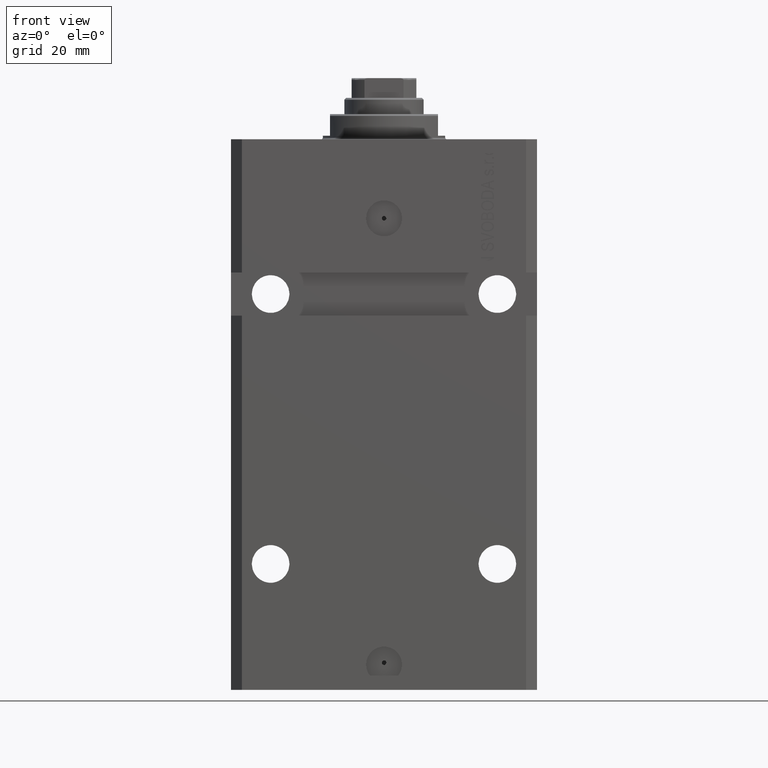
[diagram: clean part render]
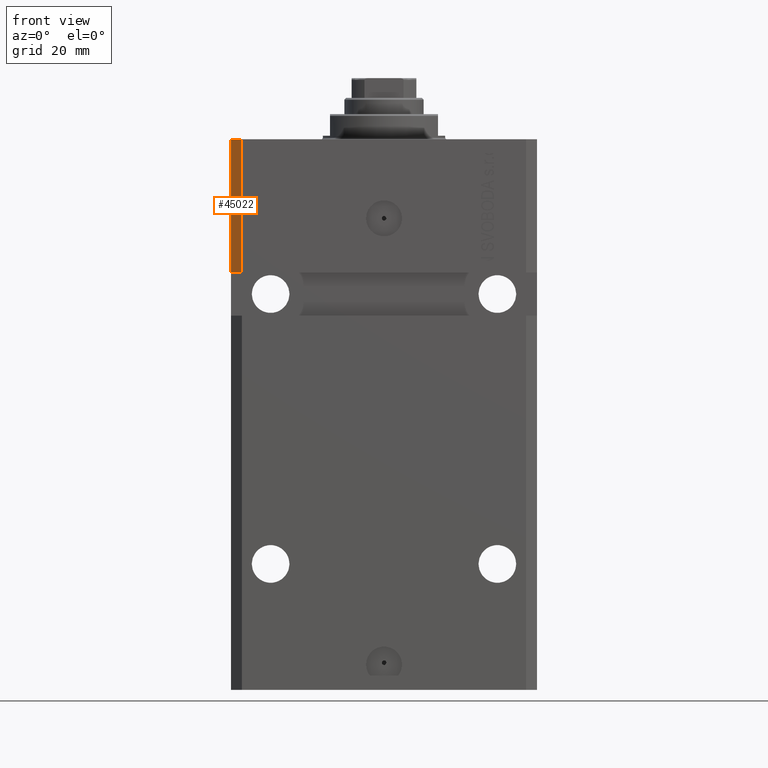
[diagram: same view with one face highlighted and labeled with its STEP entity id]
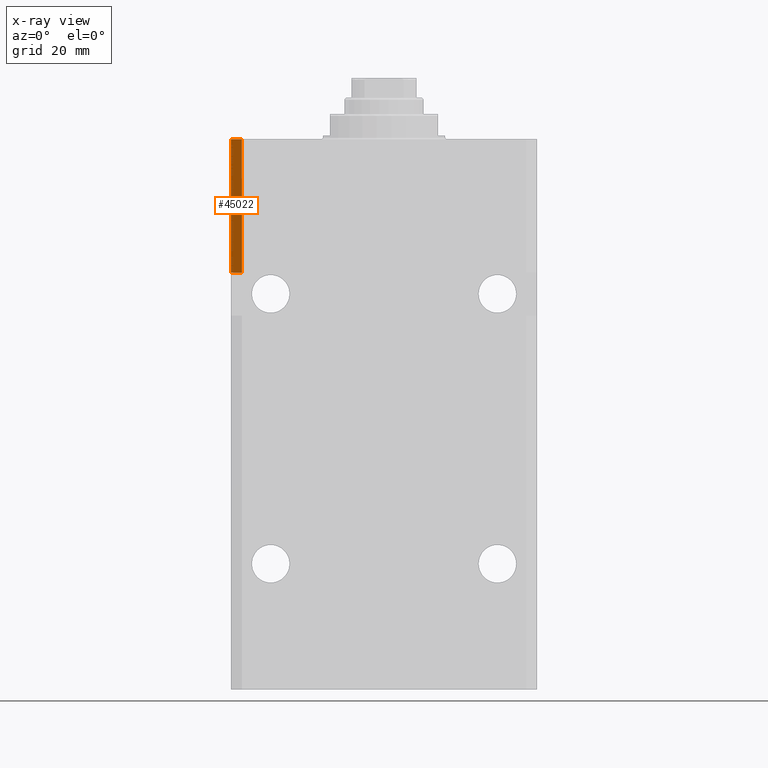
[diagram: x-ray of the same camera — body ghosted, the highlighted face saturated]
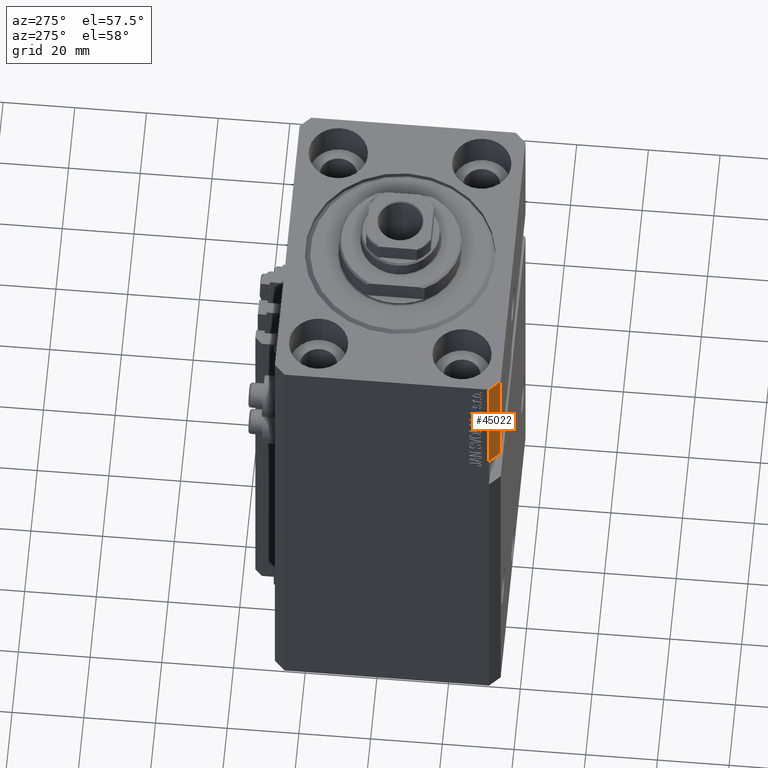
[diagram: same view with one face highlighted and labeled with its STEP entity id]
A machine part, front view. The second image highlights one B-rep face of the part: STEP entity #45022.
The next image is the same camera in x-ray: the body ghosted, the highlighted face saturated — about 0% of this face is hidden behind the body in this view.
A second angle (auxiliary view) of the same face is appended — the face is thin or edge-on in the first view.
In plain terms, the highlighted planar face has unit normal (-0.7071, -0.7071, 0).
Its self-contained STEP definition (entity closure, byte-faithful):
#190 = VERTEX_POINT ( 'NONE', #13777 ) ;
#813 = PLANE ( 'NONE',  #43628 ) ;
#3976 = LINE ( 'NONE', #8122, #5809 ) ;
#4182 = ORIENTED_EDGE ( 'NONE', *, *, #24455, .F. ) ;
#5809 = VECTOR ( 'NONE', #37321, 1000.000000000000000 ) ;
#7007 = VERTEX_POINT ( 'NONE', #23477 ) ;
#7567 = LINE ( 'NONE', #14387, #35023 ) ;
#8122 = CARTESIAN_POINT ( 'NONE',  ( -42.50000000000000711, -28.49999999999999645, -37.00000000000000711 ) ) ;
#10736 = DIRECTION ( 'NONE',  ( 0.7071067811865471286, -0.7071067811865479058, 0.000000000000000000 ) ) ;
#10797 = CARTESIAN_POINT ( 'NONE',  ( -39.50000000000000000, -31.50000000000000711, -37.00000000000000711 ) ) ;
#11073 = ORIENTED_EDGE ( 'NONE', *, *, #43781, .F. ) ;
#13777 = CARTESIAN_POINT ( 'NONE',  ( -42.50000000000000000, -28.50000000000000000, 0.000000000000000000 ) ) ;
#14387 = CARTESIAN_POINT ( 'NONE',  ( -42.50000000000000000, -28.50000000000000000, 0.000000000000000000 ) ) ;
#15660 = DIRECTION ( 'NONE',  ( -0.7071067811865479058, -0.7071067811865471286, 0.000000000000000000 ) ) ;
#17069 = ORIENTED_EDGE ( 'NONE', *, *, #33897, .T. ) ;
#20702 = DIRECTION ( 'NONE',  ( 0.000000000000000000, 0.000000000000000000, 1.000000000000000000 ) ) ;
#21949 = VERTEX_POINT ( 'NONE', #10797 ) ;
#22689 = EDGE_CURVE ( 'NONE', #21949, #33163, #3976, .T. ) ;
#23477 = CARTESIAN_POINT ( 'NONE',  ( -39.50000000000000711, -31.50000000000000000, 0.000000000000000000 ) ) ;
#24455 = EDGE_CURVE ( 'NONE', #33163, #190, #34240, .T. ) ;
#25416 = EDGE_LOOP ( 'NONE', ( #34928, #17069, #11073, #4182 ) ) ;
#26711 = DIRECTION ( 'NONE',  ( 0.000000000000000000, 0.000000000000000000, 1.000000000000000000 ) ) ;
#27112 = CARTESIAN_POINT ( 'NONE',  ( -42.50000000000000000, -28.50000000000000000, -153.0000000000000000 ) ) ;
#33163 = VERTEX_POINT ( 'NONE', #47926 ) ;
#33897 = EDGE_CURVE ( 'NONE', #21949, #7007, #46507, .T. ) ;
#34150 = FACE_OUTER_BOUND ( 'NONE', #25416, .T. ) ;
#34240 = LINE ( 'NONE', #34729, #41582 ) ;
#34729 = CARTESIAN_POINT ( 'NONE',  ( -42.50000000000000000, -28.50000000000000000, -153.0000000000000000 ) ) ;
#34928 = ORIENTED_EDGE ( 'NONE', *, *, #22689, .F. ) ;
#35023 = VECTOR ( 'NONE', #10736, 1000.000000000000000 ) ;
#37321 = DIRECTION ( 'NONE',  ( -0.7071067811865471286, 0.7071067811865479058, -5.772398745160930101E-17 ) ) ;
#41582 = VECTOR ( 'NONE', #26711, 1000.000000000000000 ) ;
#43628 = AXIS2_PLACEMENT_3D ( 'NONE', #27112, #15660, #45371 ) ;
#43781 = EDGE_CURVE ( 'NONE', #190, #7007, #7567, .T. ) ;
#45022 = ADVANCED_FACE ( 'NONE', ( #34150 ), #813, .T. ) ;
#45371 = DIRECTION ( 'NONE',  ( 0.7071067811865471286, -0.7071067811865479058, 0.000000000000000000 ) ) ;
#46271 = CARTESIAN_POINT ( 'NONE',  ( -39.50000000000000711, -31.50000000000000000, -153.0000000000000000 ) ) ;
#46476 = VECTOR ( 'NONE', #20702, 1000.000000000000000 ) ;
#46507 = LINE ( 'NONE', #46271, #46476 ) ;
#47926 = CARTESIAN_POINT ( 'NONE',  ( -42.50000000000001421, -28.50000000000000711, -37.00000000000000711 ) ) ;